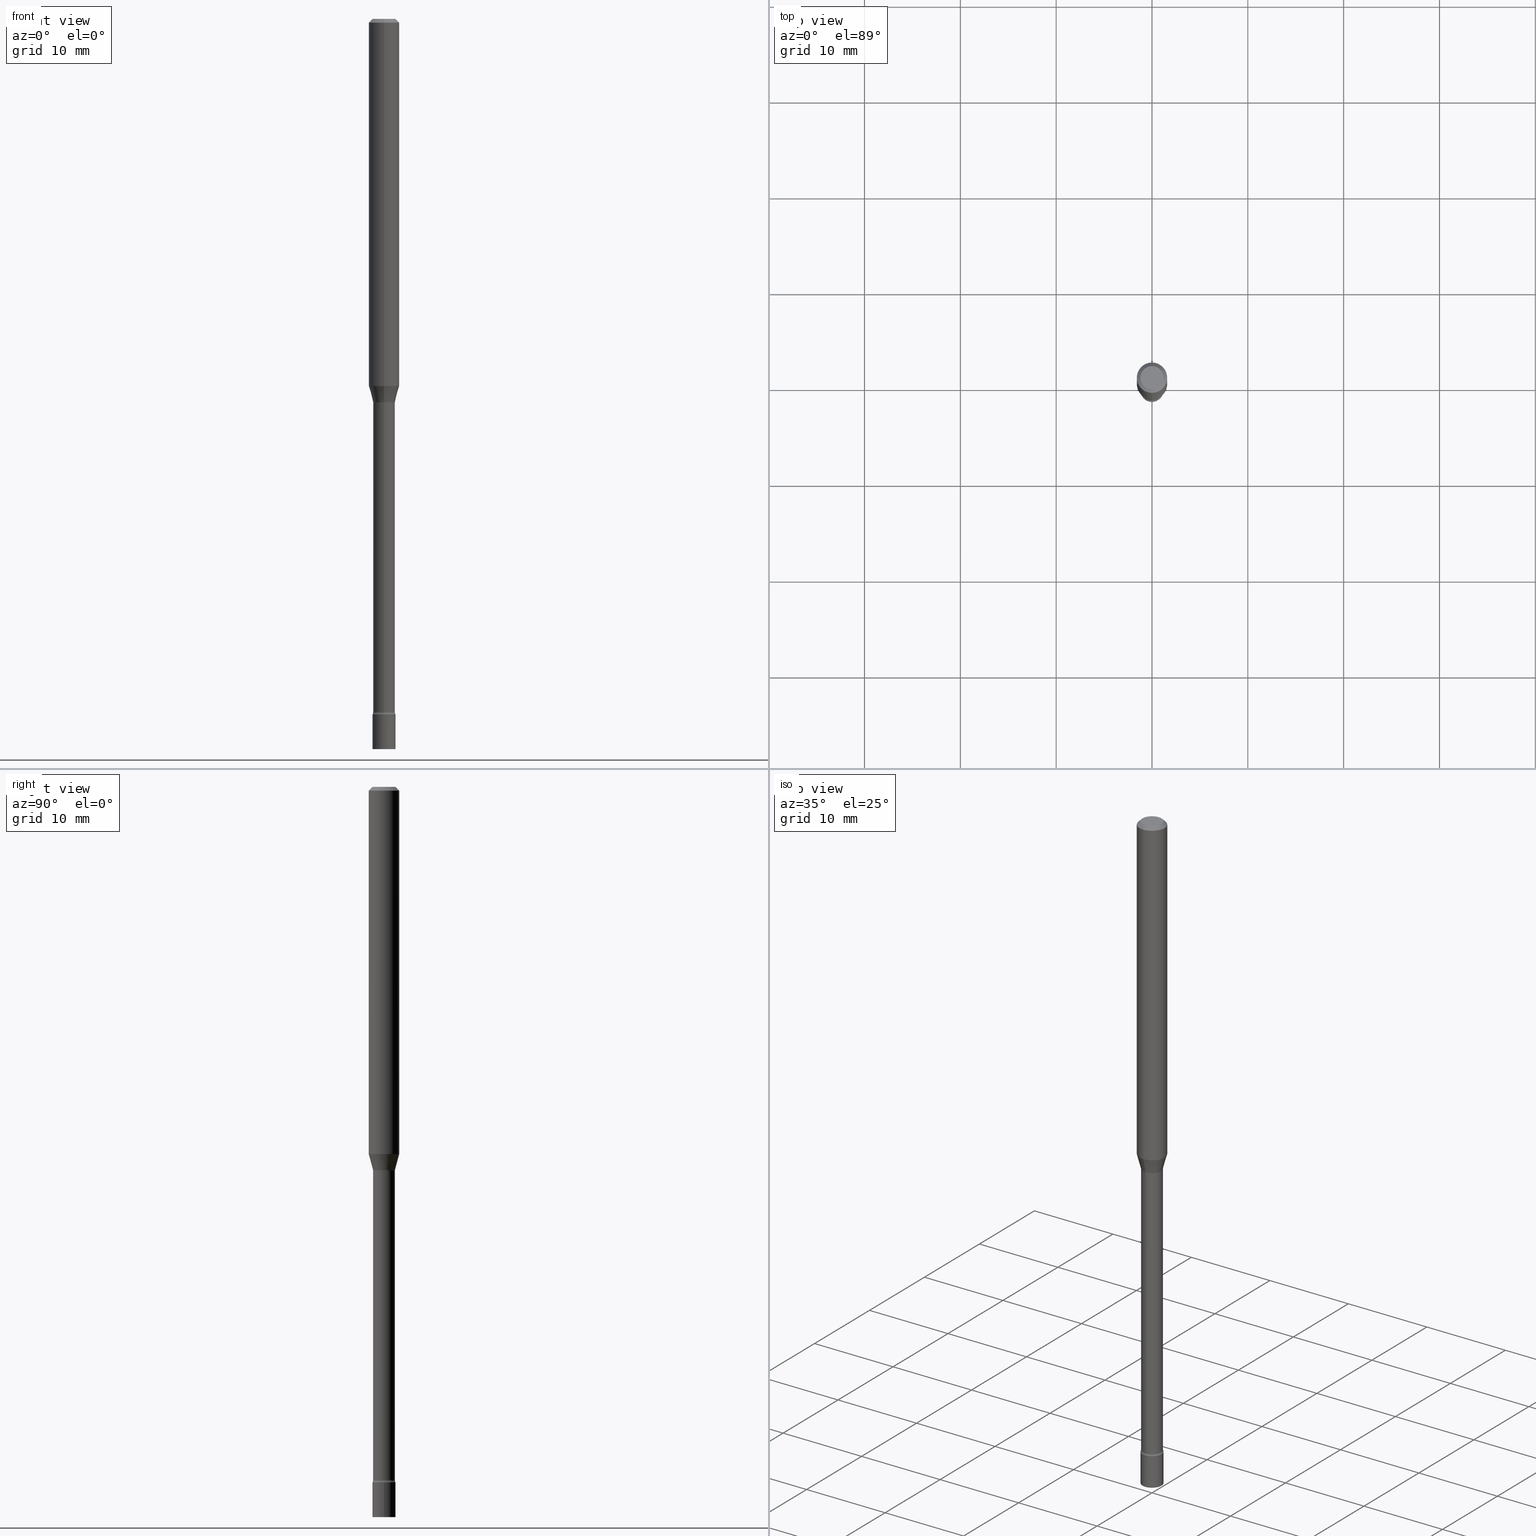
[diagram: canonical four-view strip — front | top / right | iso, engineering-drawing reading convention]
A machine part, canonical four-view strip (front | top / right | iso — engineering-drawing reading convention). The complete STEP part file that produces these views, byte-faithful:
ISO-10303-21;
HEADER;
FILE_DESCRIPTION (( 'STEP AP203' ),
    '1' );
FILE_NAME ('03638.STEP',
    '2024-03-08T22:16:25',
    ( '' ),
    ( '' ),
    'SwSTEP 2.0',
    'SolidWorks 2023',
    '' );
FILE_SCHEMA (( 'CONFIG_CONTROL_DESIGN' ));
ENDSEC;

DATA;
#1 = DIRECTION ( 'NONE',  ( 6.982962677686265922E-15, 1.000000000000000000, -3.491481019679928662E-15 ) ) ;
#2 = DIRECTION ( 'NONE',  ( -6.982962677686265922E-15, -1.000000000000000000, 3.491481019679928268E-15 ) ) ;
#3 = DIRECTION ( 'NONE',  ( -1.000000000000000000, 6.982962677686265922E-15, -4.883557194083112340E-29 ) ) ;
#4 = CARTESIAN_POINT ( 'NONE',  ( 3.846948992960399159E-29, -5.492422612191079840E-15, -1.573092501787273445 ) ) ;
#5 = CARTESIAN_POINT ( 'NONE',  ( 3.316907271900976096E-16, 0.04749999999999999362, -1.803023114788575161E-16 ) ) ;
#6 = ORIENTED_EDGE ( 'NONE', *, *, #512, .T. ) ;
#7 = TOROIDAL_SURFACE ( 'NONE', #237, 0.05965000000000014735, 0.01499999999999995608 ) ;
#8 = EDGE_CURVE ( 'NONE', #437, #149, #206, .T. ) ;
#9 =( LENGTH_UNIT ( ) NAMED_UNIT ( * ) SI_UNIT ( $, .METRE. ) );
#10 = DIRECTION ( 'NONE',  ( -2.445468806185136597E-29, 3.491481338843145583E-15, 1.000000000000000000 ) ) ;
#11 = PERSON_AND_ORGANIZATION_ROLE ( 'creator' ) ;
#12 = EDGE_LOOP ( 'NONE', ( #384, #162 ) ) ;
#13 = ADVANCED_FACE ( 'NONE', ( #128 ), #439, .T. ) ;
#14 = DIRECTION ( 'NONE',  ( 7.105427357600997914E-15, 1.000000000000000000, 0.000000000000000000 ) ) ;
#15 = AXIS2_PLACEMENT_3D ( 'NONE', #397, #165, #324 ) ;
#16 = VECTOR ( 'NONE', #353, 39.37007874015748143 ) ;
#17 = PERSON_AND_ORGANIZATION ( #141, #381 ) ;
#18 = LINE ( 'NONE', #232, #134 ) ;
#19 = ORIENTED_EDGE ( 'NONE', *, *, #488, .T. ) ;
#20 = FACE_OUTER_BOUND ( 'NONE', #281, .T. ) ;
#21 = DIRECTION ( 'NONE',  ( -6.982962677686265922E-15, -1.000000000000000000, 3.491481019679928662E-15 ) ) ;
#22 = CC_DESIGN_DATE_AND_TIME_ASSIGNMENT ( #452, #491, ( #466 ) ) ;
#23 = VECTOR ( 'NONE', #214, 39.37007874015748143 ) ;
#24 = APPROVAL_PERSON_ORGANIZATION ( #132, #50, #498 ) ;
#25 = CARTESIAN_POINT ( 'NONE',  ( 6.965192939722619373E-29, -9.944449550522084107E-15, -2.848203551853162985 ) ) ;
#26 = CALENDAR_DATE ( 2024, 8, 3 ) ;
#27 = PLANE ( 'NONE',  #432 ) ;
#28 = ORIENTED_EDGE ( 'NONE', *, *, #280, .F. ) ;
#29 = CARTESIAN_POINT ( 'NONE',  ( -3.773273898774340269E-16, -0.04749999999999999362, 1.369314223466748041E-16 ) ) ;
#30 = CC_DESIGN_PERSON_AND_ORGANIZATION_ASSIGNMENT ( #189, #136, ( #210 ) ) ;
#31 = VERTEX_POINT ( 'NONE', #172 ) ;
#32 = VERTEX_POINT ( 'NONE', #405 ) ;
#33 = LINE ( 'NONE', #197, #303 ) ;
#34 = ORIENTED_EDGE ( 'NONE', *, *, #183, .T. ) ;
#35 = ADVANCED_FACE ( 'NONE', ( #364 ), #332, .T. ) ;
#36 = LINE ( 'NONE', #194, #16 ) ;
#37 = ORIENTED_EDGE ( 'NONE', *, *, #216, .F. ) ;
#38 = DIRECTION ( 'NONE',  ( -2.445469029055619713E-29, 3.491481019679928662E-15, 1.000000000000000000 ) ) ;
#39 = CIRCLE ( 'NONE', #350, 0.04465000000000000913 ) ;
#40 = CARTESIAN_POINT ( 'NONE',  ( 7.070811075690520643E-46, -1.009524241411056403E-31, -2.891392608812181622E-17 ) ) ;
#41 = CARTESIAN_POINT ( 'NONE',  ( 0.000000000000000000, 0.000000000000000000, 0.000000000000000000 ) ) ;
#42 = VERTEX_POINT ( 'NONE', #446 ) ;
#43 = FACE_OUTER_BOUND ( 'NONE', #239, .T. ) ;
#44 = CC_DESIGN_PERSON_AND_ORGANIZATION_ASSIGNMENT ( #106, #11, ( #497 ) ) ;
#45 = ORIENTED_EDGE ( 'NONE', *, *, #224, .F. ) ;
#46 = VERTEX_POINT ( 'NONE', #249 ) ;
#47 = AXIS2_PLACEMENT_3D ( 'NONE', #502, #142, #51 ) ;
#48 = CC_DESIGN_SECURITY_CLASSIFICATION ( #466, ( #210 ) ) ;
#49 = EDGE_LOOP ( 'NONE', ( #45, #138, #425, #326 ) ) ;
#50 = APPROVAL ( #408, 'UNSPECIFIED' ) ;
#51 = DIRECTION ( 'NONE',  ( -6.982962677686265922E-15, -1.000000000000000000, 0.000000000000000000 ) ) ;
#52 = PERSON_AND_ORGANIZATION_ROLE ( 'design_supplier' ) ;
#53 = CARTESIAN_POINT ( 'NONE',  ( -3.153583638081000095E-16, -0.04516111260566949004, -1.573092501787273001 ) ) ;
#54 = EDGE_LOOP ( 'NONE', ( #392, #200, #354, #195 ) ) ;
#55 = CIRCLE ( 'NONE', #518, 0.04749999999999999362 ) ;
#56 = AXIS2_PLACEMENT_3D ( 'NONE', #288, #89, #242 ) ;
#57 = CARTESIAN_POINT ( 'NONE',  ( 3.856442650883186298E-29, -5.505978042256032480E-15, -1.576974787463811367 ) ) ;
#58 = CARTESIAN_POINT ( 'NONE',  ( 3.840629472727447874E-16, 0.04749999999999999362, -1.947592745229183872E-16 ) ) ;
#59 = ADVANCED_FACE ( 'NONE', ( #124 ), #116, .T. ) ;
#60 = LINE ( 'NONE', #217, #23 ) ;
#61 = DATE_AND_TIME ( #410, #127 ) ;
#62 = CIRCLE ( 'NONE', #321, 0.01500000000000001853 ) ;
#63 = CIRCLE ( 'NONE', #458, 0.06250000000000000000 ) ;
#64 = CARTESIAN_POINT ( 'NONE',  ( 3.688703648996427181E-29, -5.266490241615814393E-15, -1.508382893084896148 ) ) ;
#65 = ORIENTED_EDGE ( 'NONE', *, *, #341, .T. ) ;
#66 = EDGE_CURVE ( 'NONE', #159, #320, #336, .T. ) ;
#67 = CARTESIAN_POINT ( 'NONE',  ( 7.336406418555409790E-29, -1.047444401652943635E-14, -3.000000000000000444 ) ) ;
#68 = ORIENTED_EDGE ( 'NONE', *, *, #318, .F. ) ;
#69 = CARTESIAN_POINT ( 'NONE',  ( 3.846948992960399159E-29, -5.492422612191079840E-15, -1.573092501787273445 ) ) ;
#70 = ORIENTED_EDGE ( 'NONE', *, *, #212, .F. ) ;
#71 = AXIS2_PLACEMENT_3D ( 'NONE', #409, #133, #456 ) ;
#72 = DIRECTION ( 'NONE',  ( -2.445469029055619713E-29, 3.491481019679928662E-15, 1.000000000000000000 ) ) ;
#73 = AXIS2_PLACEMENT_3D ( 'NONE', #5, #207, #1 ) ;
#74 = ORIENTED_EDGE ( 'NONE', *, *, #201, .T. ) ;
#75 = CARTESIAN_POINT ( 'NONE',  ( 3.668203543583436453E-31, -5.237221529519903815E-17, -0.01500000000000003067 ) ) ;
#76 = VERTEX_POINT ( 'NONE', #484 ) ;
#77 = LINE ( 'NONE', #401, #151 ) ;
#78 = DIRECTION ( 'NONE',  ( -2.445468806185136877E-29, 3.491481338843145188E-15, 1.000000000000000000 ) ) ;
#79 = AXIS2_PLACEMENT_3D ( 'NONE', #139, #301, #500 ) ;
#80 = DIRECTION ( 'NONE',  ( 7.105427357600998703E-15, 1.000000000000000000, 0.000000000000000000 ) ) ;
#81 = AXIS2_PLACEMENT_3D ( 'NONE', #282, #331, #205 ) ;
#82 = ADVANCED_FACE ( 'NONE', ( #403 ), #175, .T. ) ;
#83 = APPROVAL_ROLE ( '' ) ;
#84 = CARTESIAN_POINT ( 'NONE',  ( 3.208890050080228195E-16, 0.04516111260565850577, -1.573092501787273667 ) ) ;
#85 = LENGTH_MEASURE_WITH_UNIT ( LENGTH_MEASURE( 0.02539999999999999897 ), #9 );
#86 = VERTEX_POINT ( 'NONE', #170 ) ;
#87 = EDGE_CURVE ( 'NONE', #437, #191, #62, .T. ) ;
#88 = ADVANCED_BREP_SHAPE_REPRESENTATION ( '03638', ( #115, #286, #56 ), #494 ) ;
#89 = DIRECTION ( 'NONE',  ( 0.000000000000000000, 0.000000000000000000, 1.000000000000000000 ) ) ;
#90 = DIRECTION ( 'NONE',  ( -2.445469029055619713E-29, 3.491481019679928662E-15, 1.000000000000000000 ) ) ;
#91 = EDGE_CURVE ( 'NONE', #338, #191, #244, .T. ) ;
#92 = TOROIDAL_SURFACE ( 'NONE', #150, 0.05965000000000000163, 0.01500000000000001506 ) ;
#93 = LOCAL_TIME ( 17, 16, 25.00000000000000000, #259 ) ;
#94 = CYLINDRICAL_SURFACE ( 'NONE', #441, 0.06250000000000000000 ) ;
#95 = CARTESIAN_POINT ( 'NONE',  ( 3.316907271901674731E-16, 0.04749999999999002243, -2.857000000000000206 ) ) ;
#96 = ORIENTED_EDGE ( 'NONE', *, *, #399, .T. ) ;
#97 = DIRECTION ( 'NONE',  ( -4.851104656540964275E-15, -0.7071067811865500152, -0.7071067811865450192 ) ) ;
#98 = AXIS2_PLACEMENT_3D ( 'NONE', #67, #117, #386 ) ;
#99 = EDGE_CURVE ( 'NONE', #159, #473, #77, .T. ) ;
#100 = FACE_OUTER_BOUND ( 'NONE', #310, .T. ) ;
#101 = FACE_OUTER_BOUND ( 'NONE', #511, .T. ) ;
#102 = APPROVAL_ROLE ( '' ) ;
#103 = DIRECTION ( 'NONE',  ( 6.982962677686265922E-15, 1.000000000000000000, -3.483106191921935554E-15 ) ) ;
#104 = ORIENTED_EDGE ( 'NONE', *, *, #125, .T. ) ;
#105 = EDGE_CURVE ( 'NONE', #351, #76, #177, .T. ) ;
#106 = PERSON_AND_ORGANIZATION ( #141, #381 ) ;
#107 = AXIS2_PLACEMENT_3D ( 'NONE', #448, #90, #2 ) ;
#108 = AXIS2_PLACEMENT_3D ( 'NONE', #489, #3, #361 ) ;
#109 = FACE_OUTER_BOUND ( 'NONE', #188, .T. ) ;
#110 = EDGE_LOOP ( 'NONE', ( #289, #74, #198, #330 ) ) ;
#111 = CARTESIAN_POINT ( 'NONE',  ( -3.117892835586925182E-16, -0.04465000000000010627, 1.558946275287091727E-16 ) ) ;
#112 = ORIENTED_EDGE ( 'NONE', *, *, #91, .F. ) ;
#113 = CARTESIAN_POINT ( 'NONE',  ( 3.846948992960399159E-29, -5.492422612191079840E-15, -1.573092501787273445 ) ) ;
#114 = ORIENTED_EDGE ( 'NONE', *, *, #91, .T. ) ;
#115 = MANIFOLD_SOLID_BREP ( 'Body-Move/Copy2[1]', #449 ) ;
#116 = CONICAL_SURFACE ( 'NONE', #413, 0.04516111260566399443, 0.2617993877991500740 ) ;
#117 = DIRECTION ( 'NONE',  ( -2.445468806185136597E-29, 3.491481338843145583E-15, 1.000000000000000000 ) ) ;
#118 = EDGE_CURVE ( 'NONE', #454, #86, #263, .T. ) ;
#119 = VERTEX_POINT ( 'NONE', #53 ) ;
#120 = APPROVAL_STATUS ( 'not_yet_approved' ) ;
#121 = ORIENTED_EDGE ( 'NONE', *, *, #318, .T. ) ;
#122 = PRODUCT_DEFINITION_SHAPE ( 'NONE', 'NONE',  #497 ) ;
#123 = LINE ( 'NONE', #284, #221 ) ;
#124 = FACE_OUTER_BOUND ( 'NONE', #154, .T. ) ;
#125 = EDGE_CURVE ( 'NONE', #320, #159, #55, .T. ) ;
#126 = AXIS2_PLACEMENT_3D ( 'NONE', #276, #419, #187 ) ;
#127 = LOCAL_TIME ( 17, 16, 25.00000000000000000, #463 ) ;
#128 = FACE_OUTER_BOUND ( 'NONE', #181, .T. ) ;
#129 = DIRECTION ( 'NONE',  ( -6.982962677686266711E-15, -1.000000000000000000, 3.491481019679928662E-15 ) ) ;
#130 = ADVANCED_FACE ( 'NONE', ( #101 ), #7, .F. ) ;
#131 = DIRECTION ( 'NONE',  ( -2.445469029055619713E-29, 3.491481019679928662E-15, 1.000000000000000000 ) ) ;
#132 = PERSON_AND_ORGANIZATION ( #141, #381 ) ;
#133 = DIRECTION ( 'NONE',  ( -2.445468806185136597E-29, 3.491481338843145583E-15, 1.000000000000000000 ) ) ;
#134 = VECTOR ( 'NONE', #158, 39.37007874015748143 ) ;
#135 = APPROVAL_PERSON_ORGANIZATION ( #443, #414, #83 ) ;
#136 = PERSON_AND_ORGANIZATION_ROLE ( 'creator' ) ;
#137 = DIRECTION ( 'NONE',  ( -1.807323732225328562E-15, -0.2588190451025179639, 0.9659258262890690894 ) ) ;
#138 = ORIENTED_EDGE ( 'NONE', *, *, #66, .F. ) ;
#139 = CARTESIAN_POINT ( 'NONE',  ( 6.986705016011906753E-29, -9.975161273225556721E-15, -2.857000000000000206 ) ) ;
#140 = EDGE_CURVE ( 'NONE', #76, #351, #312, .T. ) ;
#141 = PERSON ( 'UNSPECIFIED', 'UNSPECIFIED', 'UNSPECIFIED', ('UNSPECIFIED'), ('UNSPECIFIED'), ('UNSPECIFIED') ) ;
#142 = DIRECTION ( 'NONE',  ( -2.445469029055619713E-29, 3.491481019679928662E-15, 1.000000000000000000 ) ) ;
#143 = AXIS2_PLACEMENT_3D ( 'NONE', #113, #190, #155 ) ;
#144 = DIRECTION ( 'NONE',  ( 1.000000000000000000, -6.982962677686261977E-15, 0.000000000000000000 ) ) ;
#145 = SECURITY_CLASSIFICATION_LEVEL ( 'unclassified' ) ;
#146 = DESIGN_CONTEXT ( 'detailed design', #266, 'design' ) ;
#147 = CARTESIAN_POINT ( 'NONE',  ( 3.824891074290611821E-16, 0.04516111260565850577, -1.573092501787273667 ) ) ;
#148 = CARTESIAN_POINT ( 'NONE',  ( 3.316907271901709243E-16, 0.04749999999998952283, -3.000000000000000444 ) ) ;
#149 = VERTEX_POINT ( 'NONE', #222 ) ;
#150 = AXIS2_PLACEMENT_3D ( 'NONE', #57, #179, #339 ) ;
#151 = VECTOR ( 'NONE', #243, 39.37007874015748143 ) ;
#152 = CC_DESIGN_APPROVAL ( #50, ( #210 ) ) ;
#153 = CARTESIAN_POINT ( 'NONE',  ( 0.04749999999999999362, -1.030685291226496570E-14, -2.857000000000000206 ) ) ;
#154 = EDGE_LOOP ( 'NONE', ( #65, #476, #252, #407 ) ) ;
#155 = DIRECTION ( 'NONE',  ( -6.982962677686266711E-15, -1.000000000000000000, 6.049115790211159860E-15 ) ) ;
#156 = ORIENTED_EDGE ( 'NONE', *, *, #334, .F. ) ;
#157 = ADVANCED_FACE ( 'NONE', ( #100 ), #92, .F. ) ;
#158 = DIRECTION ( 'NONE',  ( -2.445469029055619993E-29, 3.491481019679928662E-15, 1.000000000000000000 ) ) ;
#159 = VERTEX_POINT ( 'NONE', #58 ) ;
#160 = AXIS2_PLACEMENT_3D ( 'NONE', #167, #10, #213 ) ;
#161 = APPLICATION_PROTOCOL_DEFINITION ( 'international standard', 'config_control_design', 1994, #477 ) ;
#162 = ORIENTED_EDGE ( 'NONE', *, *, #183, .F. ) ;
#163 = DIRECTION ( 'NONE',  ( -1.000000000000000000, 6.982962677686265922E-15, -4.883557194083112340E-29 ) ) ;
#164 = EDGE_CURVE ( 'NONE', #32, #86, #254, .T. ) ;
#165 = DIRECTION ( 'NONE',  ( -2.445468806185136597E-29, 3.491481338843145583E-15, 1.000000000000000000 ) ) ;
#166 =( NAMED_UNIT ( * ) PLANE_ANGLE_UNIT ( ) SI_UNIT ( $, .RADIAN. ) );
#167 = CARTESIAN_POINT ( 'NONE',  ( 0.000000000000000000, 0.000000000000000000, 0.000000000000000000 ) ) ;
#168 = DIRECTION ( 'NONE',  ( -6.982962677686261977E-15, -1.000000000000000000, 0.000000000000000000 ) ) ;
#169 = CIRCLE ( 'NONE', #278, 0.04749999999999999362 ) ;
#170 = CARTESIAN_POINT ( 'NONE',  ( 3.375077994861172585E-16, 0.04749999999999000161, -2.857000000000000206 ) ) ;
#171 = PERSON_AND_ORGANIZATION_ROLE ( 'design_owner' ) ;
#172 = CARTESIAN_POINT ( 'NONE',  ( -4.364351673553545436E-16, -0.06250000000000523193, -1.508382893084895704 ) ) ;
#173 = ADVANCED_FACE ( 'NONE', ( #373 ), #94, .T. ) ;
#174 = DATE_TIME_ROLE ( 'creation_date' ) ;
#175 = CYLINDRICAL_SURFACE ( 'NONE', #107, 0.04465000000000010627 ) ;
#176 = LINE ( 'NONE', #496, #380 ) ;
#177 = CIRCLE ( 'NONE', #15, 0.04749999999999999362 ) ;
#178 = CIRCLE ( 'NONE', #108, 0.01500000000000001853 ) ;
#179 = DIRECTION ( 'NONE',  ( -2.445469029055619713E-29, 3.491481019679928662E-15, 1.000000000000000000 ) ) ;
#180 = ADVANCED_FACE ( 'NONE', ( #265 ), #262, .T. ) ;
#181 = EDGE_LOOP ( 'NONE', ( #387, #34, #514, #422 ) ) ;
#182 = DIRECTION ( 'NONE',  ( -2.445469029055619713E-29, 3.491481019679928662E-15, 1.000000000000000000 ) ) ;
#183 = EDGE_CURVE ( 'NONE', #516, #46, #302, .T. ) ;
#184 = CLOSED_SHELL ( 'NONE', ( #157, #290, #196, #471, #173, #59, #358, #180, #355, #455, #258, #130, #82, #347 ) ) ;
#185 = CIRCLE ( 'NONE', #219, 0.04516111260566399443 ) ;
#186 = DIRECTION ( 'NONE',  ( -2.445469029055619713E-29, 3.491481019679928662E-15, 1.000000000000000000 ) ) ;
#187 = DIRECTION ( 'NONE',  ( -6.982962677686265922E-15, -1.000000000000000000, 3.491481019679928268E-15 ) ) ;
#188 = EDGE_LOOP ( 'NONE', ( #283, #261, #277, #37 ) ) ;
#189 = PERSON_AND_ORGANIZATION ( #141, #381 ) ;
#190 = DIRECTION ( 'NONE',  ( -2.445469029055619713E-29, 3.491481019679928662E-15, 1.000000000000000000 ) ) ;
#191 = VERTEX_POINT ( 'NONE', #415 ) ;
#192 = AXIS2_PLACEMENT_3D ( 'NONE', #64, #474, #505 ) ;
#193 = TOROIDAL_SURFACE ( 'NONE', #368, 0.05965000000000000163, 0.01500000000000001506 ) ;
#194 = CARTESIAN_POINT ( 'NONE',  ( 4.440892098500625669E-16, 0.06250000000000000000, -2.182175637299955414E-16 ) ) ;
#195 = ORIENTED_EDGE ( 'NONE', *, *, #393, .F. ) ;
#196 = ADVANCED_FACE ( 'NONE', ( #20 ), #440, .F. ) ;
#197 = CARTESIAN_POINT ( 'NONE',  ( -4.364351673553916201E-16, -0.06250000000000000000, 2.182175637299955414E-16 ) ) ;
#198 = ORIENTED_EDGE ( 'NONE', *, *, #296, .T. ) ;
#199 = FACE_OUTER_BOUND ( 'NONE', #481, .T. ) ;
#200 = ORIENTED_EDGE ( 'NONE', *, *, #378, .T. ) ;
#201 = EDGE_CURVE ( 'NONE', #454, #434, #507, .T. ) ;
#202 = MECHANICAL_CONTEXT ( 'NONE', #477, 'mechanical' ) ;
#203 = LOCAL_TIME ( 17, 16, 25.00000000000000000, #372 ) ;
#204 = EDGE_LOOP ( 'NONE', ( #357, #121, #467, #70 ) ) ;
#205 = DIRECTION ( 'NONE',  ( 6.982962677686265922E-15, 1.000000000000000000, -3.483106191921935554E-15 ) ) ;
#206 = LINE ( 'NONE', #84, #360 ) ;
#207 = DIRECTION ( 'NONE',  ( 2.445469029055619433E-29, -3.491481019679928662E-15, -1.000000000000000000 ) ) ;
#208 = ORIENTED_EDGE ( 'NONE', *, *, #87, .T. ) ;
#209 = AXIS2_PLACEMENT_3D ( 'NONE', #40, #293, #129 ) ;
#210 = PRODUCT_DEFINITION_FORMATION_WITH_SPECIFIED_SOURCE ( 'ANY', '', #435, .NOT_KNOWN. ) ;
#211 = ORIENTED_EDGE ( 'NONE', *, *, #66, .T. ) ;
#212 = EDGE_CURVE ( 'NONE', #149, #31, #343, .T. ) ;
#213 = DIRECTION ( 'NONE',  ( 1.000000000000000000, -6.982962677686267499E-15, 4.876176775795935793E-29 ) ) ;
#214 = DIRECTION ( 'NONE',  ( -2.445468806185136877E-29, 3.491481338843145188E-15, 1.000000000000000000 ) ) ;
#215 = PERSON_AND_ORGANIZATION ( #141, #381 ) ;
#216 = EDGE_CURVE ( 'NONE', #46, #351, #60, .T. ) ;
#217 = CARTESIAN_POINT ( 'NONE',  ( 0.04749999999999999362, -3.316907271900976589E-16, 2.316183968503069081E-30 ) ) ;
#218 = AXIS2_PLACEMENT_3D ( 'NONE', #416, #267, #21 ) ;
#219 = AXIS2_PLACEMENT_3D ( 'NONE', #69, #433, #307 ) ;
#220 = ORIENTED_EDGE ( 'NONE', *, *, #118, .T. ) ;
#221 = VECTOR ( 'NONE', #78, 39.37007874015748143 ) ;
#222 = CARTESIAN_POINT ( 'NONE',  ( 4.440892098500995940E-16, 0.06249999999999476807, -1.508382893084896370 ) ) ;
#223 = ORIENTED_EDGE ( 'NONE', *, *, #105, .T. ) ;
#224 = EDGE_CURVE ( 'NONE', #320, #42, #411, .T. ) ;
#225 = CARTESIAN_POINT ( 'NONE',  ( -4.287811248607203282E-16, -0.06250000000000005551, -0.01499999999999981209 ) ) ;
#226 = AXIS2_PLACEMENT_3D ( 'NONE', #285, #459, #14 ) ;
#227 = CALENDAR_DATE ( 2024, 8, 3 ) ;
#228 = CONICAL_SURFACE ( 'NONE', #81, 0.06250000000000000000, 0.7853981633974483900 ) ;
#229 = CARTESIAN_POINT ( 'NONE',  ( -3.117892835586235422E-16, -0.04465000000001014685, -2.848203551853162985 ) ) ;
#230 = ORIENTED_EDGE ( 'NONE', *, *, #305, .T. ) ;
#231 = APPROVAL_DATE_TIME ( #504, #268 ) ;
#232 = CARTESIAN_POINT ( 'NONE',  ( 3.172573315168854388E-16, 0.04465000000000010627, -1.558946275287091727E-16 ) ) ;
#233 = ORIENTED_EDGE ( 'NONE', *, *, #224, .T. ) ;
#234 = DIRECTION ( 'NONE',  ( -6.982962677686266711E-15, -1.000000000000000000, 6.049115790211159860E-15 ) ) ;
#235 = EDGE_CURVE ( 'NONE', #119, #31, #176, .T. ) ;
#236 = ORIENTED_EDGE ( 'NONE', *, *, #164, .T. ) ;
#237 = AXIS2_PLACEMENT_3D ( 'NONE', #451, #186, #499 ) ;
#238 = FACE_OUTER_BOUND ( 'NONE', #204, .T. ) ;
#239 = EDGE_LOOP ( 'NONE', ( #487, #233, #317, #359 ) ) ;
#240 = DIRECTION ( 'NONE',  ( -2.445469029055619713E-29, 3.491481019679928662E-15, 1.000000000000000000 ) ) ;
#241 = ORIENTED_EDGE ( 'NONE', *, *, #393, .T. ) ;
#242 = DIRECTION ( 'NONE',  ( 1.000000000000000000, 0.000000000000000000, 0.000000000000000000 ) ) ;
#243 = DIRECTION ( 'NONE',  ( 4.937700262164548042E-15, 0.7071067811865451302, -0.7071067811865499042 ) ) ;
#244 = CIRCLE ( 'NONE', #475, 0.04465000000000000913 ) ;
#245 = CALENDAR_DATE ( 2024, 8, 3 ) ;
#246 = AXIS2_PLACEMENT_3D ( 'NONE', #75, #314, #103 ) ;
#247 = DIRECTION ( 'NONE',  ( -6.982962677686266711E-15, -1.000000000000000000, 6.049115790211159860E-15 ) ) ;
#248 = DATE_AND_TIME ( #245, #255 ) ;
#249 = CARTESIAN_POINT ( 'NONE',  ( 0.04749999999999999362, -1.080613474371953465E-14, -3.000000000000000444 ) ) ;
#250 = FACE_OUTER_BOUND ( 'NONE', #519, .T. ) ;
#251 = CC_DESIGN_PERSON_AND_ORGANIZATION_ASSIGNMENT ( #215, #297, ( #466 ) ) ;
#252 = ORIENTED_EDGE ( 'NONE', *, *, #311, .F. ) ;
#253 = CARTESIAN_POINT ( 'NONE',  ( 3.273825655015366009E-16, 0.04464999999999025304, -2.848203551853162985 ) ) ;
#254 = CIRCLE ( 'NONE', #79, 0.04749999999999999362 ) ;
#255 = LOCAL_TIME ( 17, 16, 25.00000000000000000, #396 ) ;
#256 = CARTESIAN_POINT ( 'NONE',  ( 3.856443002344318772E-29, -5.505977538943686093E-15, -1.576974787463811367 ) ) ;
#257 = DIRECTION ( 'NONE',  ( -6.982962677686265922E-15, -1.000000000000000000, 3.491481019679928662E-15 ) ) ;
#258 = ADVANCED_FACE ( 'NONE', ( #298 ), #453, .F. ) ;
#259 = COORDINATED_UNIVERSAL_TIME_OFFSET ( 5, 0, .BEHIND. ) ;
#260 = DIRECTION ( 'NONE',  ( -2.445469029055619433E-29, 3.491481019679928662E-15, 1.000000000000000000 ) ) ;
#261 = ORIENTED_EDGE ( 'NONE', *, *, #517, .T. ) ;
#262 = CYLINDRICAL_SURFACE ( 'NONE', #218, 0.06250000000000000000 ) ;
#263 = CIRCLE ( 'NONE', #226, 0.01499999999999995955 ) ;
#264 = APPROVAL_PERSON_ORGANIZATION ( #17, #268, #102 ) ;
#265 = FACE_OUTER_BOUND ( 'NONE', #428, .T. ) ;
#266 = APPLICATION_CONTEXT ( 'configuration controlled 3d designs of mechanical parts and assemblies' ) ;
#267 = DIRECTION ( 'NONE',  ( -2.445469029055619713E-29, 3.491481019679928662E-15, 1.000000000000000000 ) ) ;
#268 = APPROVAL ( #423, 'UNSPECIFIED' ) ;
#269 = CARTESIAN_POINT ( 'NONE',  ( 6.965193574503121055E-29, -9.944448641480275747E-15, -2.848203551853162985 ) ) ;
#270 = AXIS2_PLACEMENT_3D ( 'NONE', #95, #260, #375 ) ;
#271 = CARTESIAN_POINT ( 'NONE',  ( 3.856443002344318772E-29, -5.505977538943686093E-15, -1.576974787463811367 ) ) ;
#272 = ORIENTED_EDGE ( 'NONE', *, *, #399, .F. ) ;
#273 = EDGE_CURVE ( 'NONE', #454, #191, #18, .T. ) ;
#274 = DIRECTION ( 'NONE',  ( -6.982962677686266711E-15, -1.000000000000000000, 0.000000000000000000 ) ) ;
#275 = ORIENTED_EDGE ( 'NONE', *, *, #118, .F. ) ;
#276 = CARTESIAN_POINT ( 'NONE',  ( 0.000000000000000000, 0.000000000000000000, 0.000000000000000000 ) ) ;
#277 = ORIENTED_EDGE ( 'NONE', *, *, #105, .F. ) ;
#278 = AXIS2_PLACEMENT_3D ( 'NONE', #279, #240, #274 ) ;
#279 = CARTESIAN_POINT ( 'NONE',  ( 6.986705016011906753E-29, -9.975161273225556721E-15, -2.857000000000000206 ) ) ;
#280 = EDGE_CURVE ( 'NONE', #473, #42, #420, .T. ) ;
#281 = EDGE_LOOP ( 'NONE', ( #412, #220, #323, #376 ) ) ;
#282 = CARTESIAN_POINT ( 'NONE',  ( 3.668203543583436453E-31, -5.237221529519903815E-17, -0.01500000000000003067 ) ) ;
#283 = ORIENTED_EDGE ( 'NONE', *, *, #327, .T. ) ;
#284 = CARTESIAN_POINT ( 'NONE',  ( -0.04749999999999999362, 3.375077994860475429E-16, -2.336494167871079910E-30 ) ) ;
#285 = CARTESIAN_POINT ( 'NONE',  ( 4.238387418809703755E-16, 0.05964999999999020391, -2.848203551853162985 ) ) ;
#286 = MANIFOLD_SOLID_BREP ( 'Body-Move/Copy2[2]', #184 ) ;
#287 = AXIS2_PLACEMENT_3D ( 'NONE', #469, #388, #429 ) ;
#288 = CARTESIAN_POINT ( 'NONE',  ( 0.000000000000000000, 0.000000000000000000, 0.000000000000000000 ) ) ;
#289 = ORIENTED_EDGE ( 'NONE', *, *, #273, .F. ) ;
#290 = ADVANCED_FACE ( 'NONE', ( #199 ), #472, .T. ) ;
#291 = DIRECTION ( 'NONE',  ( 1.000000000000000000, -6.982962677686267499E-15, 4.876176775795935793E-29 ) ) ;
#292 = DIRECTION ( 'NONE',  ( 1.000000000000000000, -7.105427357601001070E-15, 4.926315504633460141E-29 ) ) ;
#293 = DIRECTION ( 'NONE',  ( -2.445469029055619713E-29, 3.491481019679928662E-15, 1.000000000000000000 ) ) ;
#294 = AXIS2_PLACEMENT_3D ( 'NONE', #25, #182, #340 ) ;
#295 = DIRECTION ( 'NONE',  ( -2.445469029055619713E-29, 3.491481019679928662E-15, 1.000000000000000000 ) ) ;
#296 = EDGE_CURVE ( 'NONE', #434, #338, #316, .T. ) ;
#297 = PERSON_AND_ORGANIZATION_ROLE ( 'classification_officer' ) ;
#298 = FACE_OUTER_BOUND ( 'NONE', #299, .T. ) ;
#299 = EDGE_LOOP ( 'NONE', ( #460, #156 ) ) ;
#300 = DIRECTION ( 'NONE',  ( -2.445469029055619713E-29, 3.491481019679928662E-15, 1.000000000000000000 ) ) ;
#301 = DIRECTION ( 'NONE',  ( -2.445469029055619713E-29, 3.491481019679928662E-15, 1.000000000000000000 ) ) ;
#302 = CIRCLE ( 'NONE', #71, 0.04749999999999999362 ) ;
#303 = VECTOR ( 'NONE', #356, 39.37007874015748143 ) ;
#304 = ORIENTED_EDGE ( 'NONE', *, *, #212, .T. ) ;
#305 = EDGE_CURVE ( 'NONE', #191, #338, #39, .T. ) ;
#306 = DIRECTION ( 'NONE',  ( -2.445469029055619713E-29, 3.491481019679928662E-15, 1.000000000000000000 ) ) ;
#307 = DIRECTION ( 'NONE',  ( -6.982962677686266711E-15, -1.000000000000000000, 6.049115790211159860E-15 ) ) ;
#308 = PERSON_AND_ORGANIZATION ( #141, #381 ) ;
#309 = DIRECTION ( 'NONE',  ( 2.438088387897960049E-29, -3.491481338843145188E-15, -1.000000000000000000 ) ) ;
#310 = EDGE_LOOP ( 'NONE', ( #68, #208, #230, #366 ) ) ;
#311 = EDGE_CURVE ( 'NONE', #31, #149, #457, .T. ) ;
#312 = CIRCLE ( 'NONE', #389, 0.04749999999999999362 ) ;
#313 = AXIS2_PLACEMENT_3D ( 'NONE', #41, #329, #291 ) ;
#314 = DIRECTION ( 'NONE',  ( 2.445469029055619713E-29, -3.491481019679928662E-15, -1.000000000000000000 ) ) ;
#315 = ORIENTED_EDGE ( 'NONE', *, *, #341, .F. ) ;
#316 = LINE ( 'NONE', #111, #493 ) ;
#317 = ORIENTED_EDGE ( 'NONE', *, *, #480, .T. ) ;
#318 = EDGE_CURVE ( 'NONE', #437, #119, #485, .T. ) ;
#319 = DIRECTION ( 'NONE',  ( -2.445469029055619713E-29, 3.491481019679928662E-15, 1.000000000000000000 ) ) ;
#320 = VERTEX_POINT ( 'NONE', #29 ) ;
#321 = AXIS2_PLACEMENT_3D ( 'NONE', #371, #292, #80 ) ;
#322 = AXIS2_PLACEMENT_3D ( 'NONE', #269, #515, #503 ) ;
#323 = ORIENTED_EDGE ( 'NONE', *, *, #334, .T. ) ;
#324 = DIRECTION ( 'NONE',  ( 1.000000000000000000, -6.982962677686261977E-15, 0.000000000000000000 ) ) ;
#325 =( NAMED_UNIT ( * ) SI_UNIT ( $, .STERADIAN. ) SOLID_ANGLE_UNIT ( ) );
#326 = ORIENTED_EDGE ( 'NONE', *, *, #280, .T. ) ;
#327 = EDGE_CURVE ( 'NONE', #46, #516, #328, .T. ) ;
#328 = CIRCLE ( 'NONE', #98, 0.04749999999999999362 ) ;
#329 = DIRECTION ( 'NONE',  ( -2.445468806185136597E-29, 3.491481338843145583E-15, 1.000000000000000000 ) ) ;
#330 = ORIENTED_EDGE ( 'NONE', *, *, #305, .F. ) ;
#331 = DIRECTION ( 'NONE',  ( 2.445469029055619713E-29, -3.491481019679928662E-15, -1.000000000000000000 ) ) ;
#332 = PLANE ( 'NONE',  #398 ) ;
#333 = COORDINATED_UNIVERSAL_TIME_OFFSET ( 5, 0, .BEHIND. ) ;
#334 = EDGE_CURVE ( 'NONE', #86, #32, #169, .T. ) ;
#335 = DIRECTION ( 'NONE',  ( -2.445469029055619713E-29, 3.491481019679928662E-15, 1.000000000000000000 ) ) ;
#336 = CIRCLE ( 'NONE', #209, 0.04749999999999999362 ) ;
#337 = DIRECTION ( 'NONE',  ( -2.445468806185136597E-29, 3.491481338843145583E-15, 1.000000000000000000 ) ) ;
#338 = VERTEX_POINT ( 'NONE', #464 ) ;
#339 = DIRECTION ( 'NONE',  ( -6.982962677686265922E-15, -1.000000000000000000, 3.491481019679928662E-15 ) ) ;
#340 = DIRECTION ( 'NONE',  ( -6.982962677686265922E-15, -1.000000000000000000, 3.491481019679928662E-15 ) ) ;
#341 = EDGE_CURVE ( 'NONE', #119, #437, #185, .T. ) ;
#342 = DIRECTION ( 'NONE',  ( -6.982962677686266711E-15, -1.000000000000000000, 3.491481019679928662E-15 ) ) ;
#343 = CIRCLE ( 'NONE', #501, 0.06250000000000000000 ) ;
#344 = UNCERTAINTY_MEASURE_WITH_UNIT (LENGTH_MEASURE( 1.000000000000000082E-05 ), #404, 'distance_accuracy_value', 'NONE');
#345 = CARTESIAN_POINT ( 'NONE',  ( 0.000000000000000000, 0.000000000000000000, 0.000000000000000000 ) ) ;
#346 = DIRECTION ( 'NONE',  ( -2.445469029055619993E-29, 3.491481019679928662E-15, 1.000000000000000000 ) ) ;
#347 = ADVANCED_FACE ( 'NONE', ( #513 ), #193, .F. ) ;
#348 = EDGE_LOOP ( 'NONE', ( #223, #506 ) ) ;
#349 = FACE_OUTER_BOUND ( 'NONE', #49, .T. ) ;
#350 = AXIS2_PLACEMENT_3D ( 'NONE', #271, #319, #424 ) ;
#351 = VERTEX_POINT ( 'NONE', #153 ) ;
#352 = LOCAL_TIME ( 17, 16, 25.00000000000000000, #333 ) ;
#353 = DIRECTION ( 'NONE',  ( -2.445469029055619993E-29, 3.491481019679928662E-15, 1.000000000000000000 ) ) ;
#354 = ORIENTED_EDGE ( 'NONE', *, *, #480, .F. ) ;
#355 = ADVANCED_FACE ( 'NONE', ( #349 ), #450, .T. ) ;
#356 = DIRECTION ( 'NONE',  ( -2.445469029055619993E-29, 3.491481019679928662E-15, 1.000000000000000000 ) ) ;
#357 = ORIENTED_EDGE ( 'NONE', *, *, #8, .F. ) ;
#358 = ADVANCED_FACE ( 'NONE', ( #238 ), #478, .T. ) ;
#359 = ORIENTED_EDGE ( 'NONE', *, *, #99, .F. ) ;
#360 = VECTOR ( 'NONE', #369, 39.37007874015748854 ) ;
#361 = DIRECTION ( 'NONE',  ( -6.982962677686263555E-15, -1.000000000000000000, 0.000000000000000000 ) ) ;
#362 = DIRECTION ( 'NONE',  ( -2.438088387897960049E-29, 3.491481338843145188E-15, 1.000000000000000000 ) ) ;
#363 = PLANE ( 'NONE',  #73 ) ;
#364 = FACE_OUTER_BOUND ( 'NONE', #348, .T. ) ;
#365 = CARTESIAN_POINT ( 'NONE',  ( -4.165337237239172076E-16, -0.05965000000001009772, -2.848203551853162985 ) ) ;
#366 = ORIENTED_EDGE ( 'NONE', *, *, #512, .F. ) ;
#367 = VECTOR ( 'NONE', #97, 39.37007874015748143 ) ;
#368 = AXIS2_PLACEMENT_3D ( 'NONE', #426, #72, #508 ) ;
#369 = DIRECTION ( 'NONE',  ( 1.839019923739598738E-15, 0.2588190451025247363, 0.9659258262890673130 ) ) ;
#370 = PRODUCT_RELATED_PRODUCT_CATEGORY ( 'detail', '', ( #435 ) ) ;
#371 = CARTESIAN_POINT ( 'NONE',  ( 4.238387418809383280E-16, 0.05964999999999449909, -1.576974787463811589 ) ) ;
#372 = COORDINATED_UNIVERSAL_TIME_OFFSET ( 5, 0, .BEHIND. ) ;
#373 = FACE_OUTER_BOUND ( 'NONE', #54, .T. ) ;
#374 = SHAPE_DEFINITION_REPRESENTATION ( #122, #88 ) ;
#375 = DIRECTION ( 'NONE',  ( -6.982962677686265922E-15, -1.000000000000000000, 3.491481019679928662E-15 ) ) ;
#376 = ORIENTED_EDGE ( 'NONE', *, *, #488, .F. ) ;
#377 = CARTESIAN_POINT ( 'NONE',  ( 7.070811075690520643E-46, -1.009524241411056403E-31, -2.891392608812181622E-17 ) ) ;
#378 = EDGE_CURVE ( 'NONE', #149, #473, #36, .T. ) ;
#379 = CARTESIAN_POINT ( 'NONE',  ( 3.688703648996427181E-29, -5.266490241615814393E-15, -1.508382893084896148 ) ) ;
#380 = VECTOR ( 'NONE', #137, 39.37007874015748854 ) ;
#381 = ORGANIZATION ( 'UNSPECIFIED', 'UNSPECIFIED', '' ) ;
#382 = CC_DESIGN_PERSON_AND_ORGANIZATION_ASSIGNMENT ( #483, #171, ( #435 ) ) ;
#383 = FACE_OUTER_BOUND ( 'NONE', #12, .T. ) ;
#384 = ORIENTED_EDGE ( 'NONE', *, *, #327, .F. ) ;
#385 = DATE_AND_TIME ( #227, #93 ) ;
#386 = DIRECTION ( 'NONE',  ( 1.000000000000000000, -6.982962677686261977E-15, 0.000000000000000000 ) ) ;
#387 = ORIENTED_EDGE ( 'NONE', *, *, #517, .F. ) ;
#388 = DIRECTION ( 'NONE',  ( -2.445469029055619713E-29, 3.491481019679928662E-15, 1.000000000000000000 ) ) ;
#389 = AXIS2_PLACEMENT_3D ( 'NONE', #461, #337, #144 ) ;
#390 = ORIENTED_EDGE ( 'NONE', *, *, #87, .F. ) ;
#391 = CARTESIAN_POINT ( 'NONE',  ( 3.846948992960399159E-29, -5.492422612191079840E-15, -1.573092501787273445 ) ) ;
#392 = ORIENTED_EDGE ( 'NONE', *, *, #311, .T. ) ;
#393 = EDGE_CURVE ( 'NONE', #31, #42, #33, .T. ) ;
#394 = DIRECTION ( 'NONE',  ( -2.445469029055619713E-29, 3.491481019679928662E-15, 1.000000000000000000 ) ) ;
#395 = ORIENTED_EDGE ( 'NONE', *, *, #378, .F. ) ;
#396 = COORDINATED_UNIVERSAL_TIME_OFFSET ( 5, 0, .BEHIND. ) ;
#397 = CARTESIAN_POINT ( 'NONE',  ( 6.986704379270935831E-29, -9.975162185074867400E-15, -2.857000000000000206 ) ) ;
#398 = AXIS2_PLACEMENT_3D ( 'NONE', #490, #362, #482 ) ;
#399 = EDGE_CURVE ( 'NONE', #434, #454, #421, .T. ) ;
#400 = CARTESIAN_POINT ( 'NONE',  ( 4.440892098500996926E-16, 0.06249999999999995143, -0.01500000000000024751 ) ) ;
#401 = CARTESIAN_POINT ( 'NONE',  ( 4.364351673553919652E-16, 0.06249999999999995143, -0.01500000000000024751 ) ) ;
#402 = CYLINDRICAL_SURFACE ( 'NONE', #313, 0.04749999999999999362 ) ;
#403 = FACE_OUTER_BOUND ( 'NONE', #110, .T. ) ;
#404 =( CONVERSION_BASED_UNIT ( 'INCH', #85 ) LENGTH_UNIT ( ) NAMED_UNIT ( #427 ) );
#405 = CARTESIAN_POINT ( 'NONE',  ( -3.316907271900276475E-16, -0.04750000000000995787, -2.857000000000000206 ) ) ;
#406 = AXIS2_PLACEMENT_3D ( 'NONE', #365, #163, #168 ) ;
#407 = ORIENTED_EDGE ( 'NONE', *, *, #235, .F. ) ;
#408 = APPROVAL_STATUS ( 'not_yet_approved' ) ;
#409 = CARTESIAN_POINT ( 'NONE',  ( 7.336406418555409790E-29, -1.047444401652943635E-14, -3.000000000000000444 ) ) ;
#410 = CALENDAR_DATE ( 2024, 8, 3 ) ;
#411 = LINE ( 'NONE', #225, #367 ) ;
#412 = ORIENTED_EDGE ( 'NONE', *, *, #201, .F. ) ;
#413 = AXIS2_PLACEMENT_3D ( 'NONE', #4, #131, #247 ) ;
#414 = APPROVAL ( #120, 'UNSPECIFIED' ) ;
#415 = CARTESIAN_POINT ( 'NONE',  ( 3.172573315169550065E-16, 0.04464999999999450658, -1.576974787463811589 ) ) ;
#416 = CARTESIAN_POINT ( 'NONE',  ( 0.000000000000000000, 0.000000000000000000, 0.000000000000000000 ) ) ;
#417 = DIRECTION ( 'NONE',  ( -6.982962677686265922E-15, -1.000000000000000000, 4.370956789862821150E-15 ) ) ;
#418 = CALENDAR_DATE ( 2024, 8, 3 ) ;
#419 = DIRECTION ( 'NONE',  ( -2.445469029055619713E-29, 3.491481019679928662E-15, 1.000000000000000000 ) ) ;
#420 = CIRCLE ( 'NONE', #287, 0.06250000000000000000 ) ;
#421 = CIRCLE ( 'NONE', #322, 0.04465000000000019648 ) ;
#422 = ORIENTED_EDGE ( 'NONE', *, *, #140, .F. ) ;
#423 = APPROVAL_STATUS ( 'not_yet_approved' ) ;
#424 = DIRECTION ( 'NONE',  ( -6.982962677686265922E-15, -1.000000000000000000, 6.118360568117049942E-15 ) ) ;
#425 = ORIENTED_EDGE ( 'NONE', *, *, #99, .T. ) ;
#426 = CARTESIAN_POINT ( 'NONE',  ( 3.856442650883186298E-29, -5.505978042256032480E-15, -1.576974787463811367 ) ) ;
#427 = DIMENSIONAL_EXPONENTS ( 1.000000000000000000, 0.000000000000000000, 0.000000000000000000, 0.000000000000000000, 0.000000000000000000, 0.000000000000000000, 0.000000000000000000 ) ;
#428 = EDGE_LOOP ( 'NONE', ( #395, #304, #241, #28 ) ) ;
#429 = DIRECTION ( 'NONE',  ( -6.982962677686265922E-15, -1.000000000000000000, 3.483106191921935554E-15 ) ) ;
#430 = CC_DESIGN_PERSON_AND_ORGANIZATION_ASSIGNMENT ( #308, #52, ( #210 ) ) ;
#431 = ORIENTED_EDGE ( 'NONE', *, *, #296, .F. ) ;
#432 = AXIS2_PLACEMENT_3D ( 'NONE', #148, #309, #465 ) ;
#433 = DIRECTION ( 'NONE',  ( -2.445469029055619713E-29, 3.491481019679928662E-15, 1.000000000000000000 ) ) ;
#434 = VERTEX_POINT ( 'NONE', #229 ) ;
#435 = PRODUCT ( '03638', '03638', '', ( #202 ) ) ;
#436 = DIRECTION ( 'NONE',  ( -6.982962677686265922E-15, -1.000000000000000000, 3.483106191921935554E-15 ) ) ;
#437 = VERTEX_POINT ( 'NONE', #147 ) ;
#438 = ADVANCED_FACE ( 'NONE', ( #383 ), #27, .T. ) ;
#439 = CYLINDRICAL_SURFACE ( 'NONE', #160, 0.04749999999999999362 ) ;
#440 = TOROIDAL_SURFACE ( 'NONE', #294, 0.05965000000000014735, 0.01499999999999995608 ) ;
#441 = AXIS2_PLACEMENT_3D ( 'NONE', #345, #300, #257 ) ;
#442 = CC_DESIGN_APPROVAL ( #268, ( #466 ) ) ;
#443 = PERSON_AND_ORGANIZATION ( #141, #381 ) ;
#444 = ORIENTED_EDGE ( 'NONE', *, *, #273, .T. ) ;
#445 = CARTESIAN_POINT ( 'NONE',  ( 3.668203543583436453E-31, -5.237221529519903815E-17, -0.01500000000000003067 ) ) ;
#446 = CARTESIAN_POINT ( 'NONE',  ( -4.364351673553912750E-16, -0.06250000000000005551, -0.01499999999999981209 ) ) ;
#447 = ADVANCED_FACE ( 'NONE', ( #109 ), #402, .T. ) ;
#448 = CARTESIAN_POINT ( 'NONE',  ( 0.000000000000000000, 0.000000000000000000, 0.000000000000000000 ) ) ;
#449 = CLOSED_SHELL ( 'NONE', ( #447, #35, #13, #438 ) ) ;
#450 = CONICAL_SURFACE ( 'NONE', #246, 0.06250000000000000000, 0.7853981633974483900 ) ;
#451 = CARTESIAN_POINT ( 'NONE',  ( 6.965192939722619373E-29, -9.944449550522084107E-15, -2.848203551853162985 ) ) ;
#452 = DATE_AND_TIME ( #26, #203 ) ;
#453 = PLANE ( 'NONE',  #270 ) ;
#454 = VERTEX_POINT ( 'NONE', #253 ) ;
#455 = ADVANCED_FACE ( 'NONE', ( #250 ), #363, .F. ) ;
#456 = DIRECTION ( 'NONE',  ( 1.000000000000000000, -6.982962677686261977E-15, 0.000000000000000000 ) ) ;
#457 = CIRCLE ( 'NONE', #192, 0.06250000000000000000 ) ;
#458 = AXIS2_PLACEMENT_3D ( 'NONE', #445, #38, #436 ) ;
#459 = DIRECTION ( 'NONE',  ( 1.000000000000000000, -7.105427357601001070E-15, 4.926315504633460141E-29 ) ) ;
#460 = ORIENTED_EDGE ( 'NONE', *, *, #164, .F. ) ;
#461 = CARTESIAN_POINT ( 'NONE',  ( 6.986704379270935831E-29, -9.975162185074867400E-15, -2.857000000000000206 ) ) ;
#462 = CC_DESIGN_DATE_AND_TIME_ASSIGNMENT ( #61, #174, ( #497 ) ) ;
#463 = COORDINATED_UNIVERSAL_TIME_OFFSET ( 5, 0, .BEHIND. ) ;
#464 = CARTESIAN_POINT ( 'NONE',  ( -3.117892835586532724E-16, -0.04465000000000551861, -1.576974787463810923 ) ) ;
#465 = DIRECTION ( 'NONE',  ( -1.000000000000000000, 6.982962677686265922E-15, -4.876176775795935793E-29 ) ) ;
#466 = SECURITY_CLASSIFICATION ( '', '', #145 ) ;
#467 = ORIENTED_EDGE ( 'NONE', *, *, #235, .T. ) ;
#468 = APPROVAL_DATE_TIME ( #248, #414 ) ;
#469 = CARTESIAN_POINT ( 'NONE',  ( 3.668203543583436453E-31, -5.237221529519903815E-17, -0.01500000000000003067 ) ) ;
#470 = EDGE_LOOP ( 'NONE', ( #390, #315, #6, #114 ) ) ;
#471 = ADVANCED_FACE ( 'NONE', ( #43 ), #228, .T. ) ;
#472 = CYLINDRICAL_SURFACE ( 'NONE', #126, 0.04465000000000010627 ) ;
#473 = VERTEX_POINT ( 'NONE', #400 ) ;
#474 = DIRECTION ( 'NONE',  ( -2.445469029055619713E-29, 3.491481019679928662E-15, 1.000000000000000000 ) ) ;
#475 = AXIS2_PLACEMENT_3D ( 'NONE', #256, #335, #492 ) ;
#476 = ORIENTED_EDGE ( 'NONE', *, *, #8, .T. ) ;
#477 = APPLICATION_CONTEXT ( 'configuration controlled 3d designs of mechanical parts and assemblies' ) ;
#478 = CONICAL_SURFACE ( 'NONE', #509, 0.04516111260566399443, 0.2617993877991500740 ) ;
#479 = APPLICATION_PROTOCOL_DEFINITION ( 'international standard', 'config_control_design', 1994, #266 ) ;
#480 = EDGE_CURVE ( 'NONE', #42, #473, #63, .T. ) ;
#481 = EDGE_LOOP ( 'NONE', ( #96, #444, #112, #431 ) ) ;
#482 = DIRECTION ( 'NONE',  ( 1.000000000000000000, -6.982962677686265922E-15, 4.876176775795935793E-29 ) ) ;
#483 = PERSON_AND_ORGANIZATION ( #141, #381 ) ;
#484 = CARTESIAN_POINT ( 'NONE',  ( -0.04749999999999999362, -9.887295301316104383E-15, -2.857000000000000206 ) ) ;
#485 = CIRCLE ( 'NONE', #143, 0.04516111260566399443 ) ;
#486 = CARTESIAN_POINT ( 'NONE',  ( -0.04749999999999999362, -9.887295301316104383E-15, -3.000000000000000444 ) ) ;
#487 = ORIENTED_EDGE ( 'NONE', *, *, #125, .F. ) ;
#488 = EDGE_CURVE ( 'NONE', #434, #32, #520, .T. ) ;
#489 = CARTESIAN_POINT ( 'NONE',  ( -4.165337237239472336E-16, -0.05965000000000551111, -1.576974787463810923 ) ) ;
#490 = CARTESIAN_POINT ( 'NONE',  ( 6.986704379270935831E-29, -9.975162185074867400E-15, -2.857000000000000206 ) ) ;
#491 = DATE_TIME_ROLE ( 'classification_date' ) ;
#492 = DIRECTION ( 'NONE',  ( -6.982962677686265922E-15, -1.000000000000000000, 6.118360568117049942E-15 ) ) ;
#493 = VECTOR ( 'NONE', #346, 39.37007874015748143 ) ;
#494 =( GEOMETRIC_REPRESENTATION_CONTEXT ( 3 ) GLOBAL_UNCERTAINTY_ASSIGNED_CONTEXT ( ( #344 ) ) GLOBAL_UNIT_ASSIGNED_CONTEXT ( ( #404, #166, #325 ) ) REPRESENTATION_CONTEXT ( 'NONE', 'WORKASPACE' ) );
#495 = APPROVAL_DATE_TIME ( #385, #50 ) ;
#496 = CARTESIAN_POINT ( 'NONE',  ( -3.153583638081000095E-16, -0.04516111260566949004, -1.573092501787273001 ) ) ;
#497 = PRODUCT_DEFINITION ( 'UNKNOWN', '', #210, #146 ) ;
#498 = APPROVAL_ROLE ( '' ) ;
#499 = DIRECTION ( 'NONE',  ( -6.982962677686265922E-15, -1.000000000000000000, 3.491481019679928662E-15 ) ) ;
#500 = DIRECTION ( 'NONE',  ( -6.982962677686266711E-15, -1.000000000000000000, 0.000000000000000000 ) ) ;
#501 = AXIS2_PLACEMENT_3D ( 'NONE', #379, #306, #417 ) ;
#502 = CARTESIAN_POINT ( 'NONE',  ( 6.965193574503121055E-29, -9.944448641480275747E-15, -2.848203551853162985 ) ) ;
#503 = DIRECTION ( 'NONE',  ( -6.982962677686265922E-15, -1.000000000000000000, 0.000000000000000000 ) ) ;
#504 = DATE_AND_TIME ( #418, #352 ) ;
#505 = DIRECTION ( 'NONE',  ( -6.982962677686265922E-15, -1.000000000000000000, 4.370956789862821150E-15 ) ) ;
#506 = ORIENTED_EDGE ( 'NONE', *, *, #140, .T. ) ;
#507 = CIRCLE ( 'NONE', #47, 0.04465000000000019648 ) ;
#508 = DIRECTION ( 'NONE',  ( -6.982962677686265922E-15, -1.000000000000000000, 3.491481019679928662E-15 ) ) ;
#509 = AXIS2_PLACEMENT_3D ( 'NONE', #391, #394, #234 ) ;
#510 = CC_DESIGN_APPROVAL ( #414, ( #497 ) ) ;
#511 = EDGE_LOOP ( 'NONE', ( #275, #272, #19, #236 ) ) ;
#512 = EDGE_CURVE ( 'NONE', #119, #338, #178, .T. ) ;
#513 = FACE_OUTER_BOUND ( 'NONE', #470, .T. ) ;
#514 = ORIENTED_EDGE ( 'NONE', *, *, #216, .T. ) ;
#515 = DIRECTION ( 'NONE',  ( -2.445469029055619713E-29, 3.491481019679928662E-15, 1.000000000000000000 ) ) ;
#516 = VERTEX_POINT ( 'NONE', #486 ) ;
#517 = EDGE_CURVE ( 'NONE', #516, #76, #123, .T. ) ;
#518 = AXIS2_PLACEMENT_3D ( 'NONE', #377, #295, #342 ) ;
#519 = EDGE_LOOP ( 'NONE', ( #211, #104 ) ) ;
#520 = CIRCLE ( 'NONE', #406, 0.01499999999999995955 ) ;
ENDSEC;
END-ISO-10303-21;
